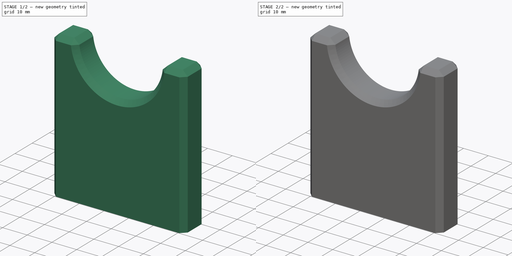
[diagram: build sequence overview — one tinted view per stage of 2, left to right]
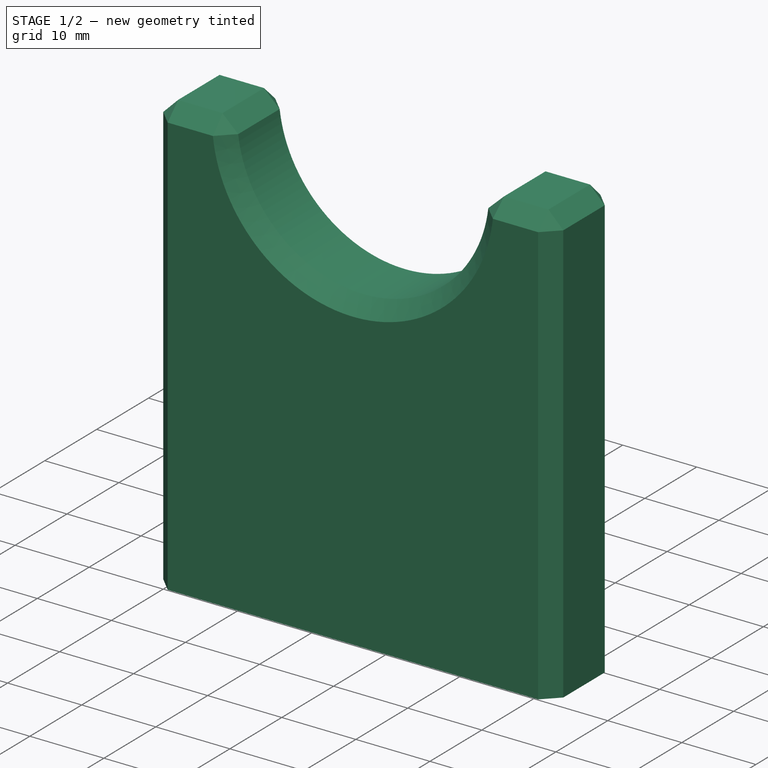
[diagram: stage 1 of 2 — iso view after this stage's code; geometry added in this stage tinted green]
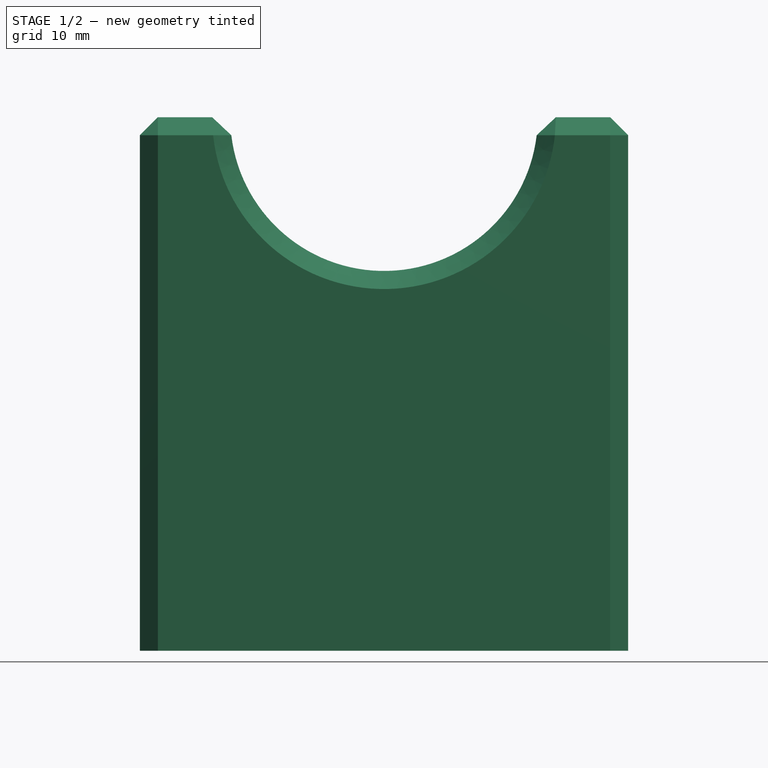
[diagram: stage 1 of 2 — front view after this stage's code; geometry added in this stage tinted green]
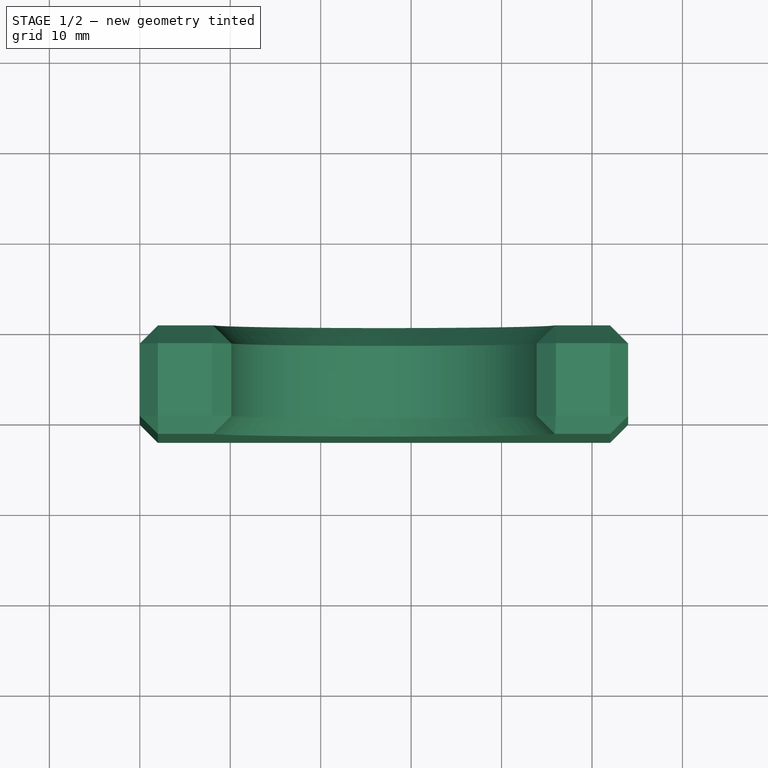
[diagram: stage 1 of 2 — top view after this stage's code; geometry added in this stage tinted green]
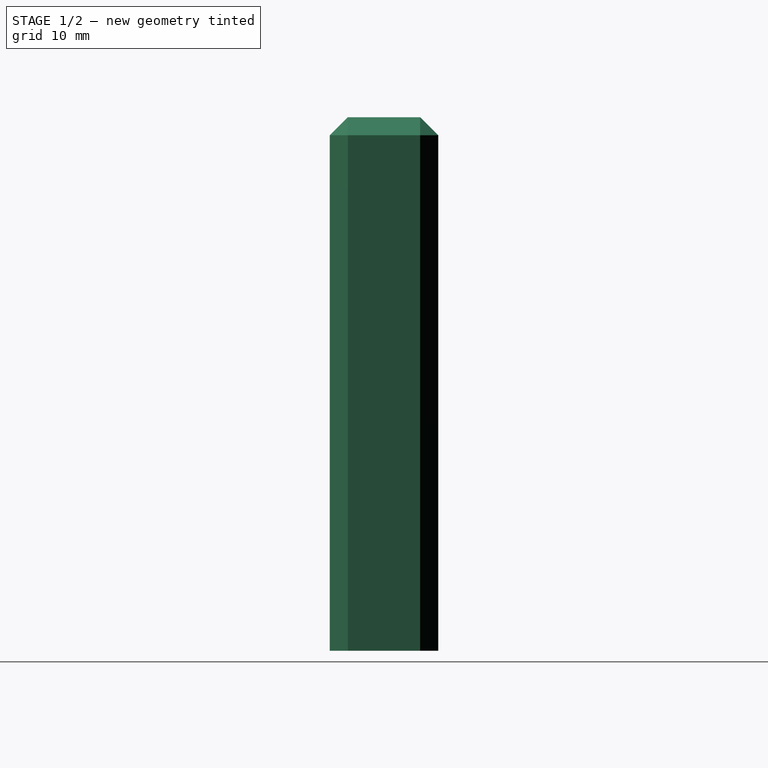
[diagram: stage 1 of 2 — right view after this stage's code; geometry added in this stage tinted green]
FCSTD DOCUMENT  (FreeCAD 1.0R39285 (Git))
Label: DeWalt_DW621_Mount
License: All rights reserved
LicenseURL: https://en.wikipedia.org/wiki/All_rights_reserved
objects: Sketcher::SketchObject×2, PartDesign::Pad×1, PartDesign::Chamfer×1, PartDesign::Hole×1, PartDesign::Body×1
note: 14 computed .brp shape members not serialized (recipe doc carries the construction recipe); baked Part::Feature solids carry a one-line shape summary decoded from their .brp

FEATURE [Sketcher::SketchObject] Sketch
  ArcFitTolerance = 1e-06
  AttachmentSupport = -> [XZ_Plane]
  FullyConstrained = true
  MakeInternals = false
  MapMode = 5
  Placement = pos=(0,0,0) rot=(1,0,0;1.5708rad)
  sketch-geometry (10):
    g0: LineSegment StartX=0 StartY=0 StartZ=0 EndX=54 EndY=0 EndZ=0
    g1: LineSegment StartX=54 StartY=0 StartZ=0 EndX=54 EndY=59 EndZ=0
    g2: LineSegment StartX=0 StartY=59 StartZ=0 EndX=0 EndY=0 EndZ=0
    g3: ArcOfCircle CenterX=27 CenterY=59 CenterZ=0 NormalX=0 NormalY=0 NormalZ=1 AngleXU=0 Radius=17 StartAngle=3.14159 EndAngle=6.28319
    g4: LineSegment StartX=10 StartY=59 StartZ=0 EndX=0 EndY=59 EndZ=0
    g5: LineSegment StartX=54 StartY=59 StartZ=0 EndX=44 EndY=59 EndZ=0
    g6: LineSegment [constr] StartX=44 StartY=59 StartZ=0 EndX=10 EndY=59 EndZ=0
    g7: LineSegment [constr] StartX=27 StartY=0 StartZ=0 EndX=27 EndY=42 EndZ=0
    g8: LineSegment [constr] StartX=0 StartY=29.5 StartZ=0 EndX=27 EndY=29.5 EndZ=0
    g9: LineSegment [constr] StartX=27 StartY=29.5 StartZ=0 EndX=54 EndY=29.5 EndZ=0
  constraints (28):
    c: Coincident(g0,g1)
    c: Coincident(g1,g5)
    c: Coincident(g4,g2)
    c: Coincident(g2,g0)
    c: Horizontal(g0)
    c: Vertical(g1)
    c: Vertical(g2)
    c: Coincident(g0,g-1)
    c: Symmetric(g5,g4,g3)
    c: Coincident(g6,g4)
    c: Horizontal(g4)
    c: Coincident(g5,g6)
    c: Horizontal(g5)
    c: Horizontal(g6)
    c: Coincident(g3,g5)
    c: Coincident(g3,g4)
    c: DistanceX(g5,g5) = 10
    c: Diameter(g3) = 34
    c: PointOnObject(g7,g0)
    c: PointOnObject(g7,g3)
    c: Vertical(g7)
    c: Symmetric(g2,g2,g8)
    c: PointOnObject(g8,g7)
    c: Horizontal(g8)
    c: Coincident(g9,g8)
    c: Symmetric(g1,g1,g9)
    c: Equal(g8,g9)
    c: DistanceY(g7,g7) = 42
FEATURE [PartDesign::Pad] Pad
  Direction = (0,-1,2e-16)
  Length = 12
  Length2 = 10
  Placement = pos=(0,0,0) rot=(1,0,0;1.5708rad)
  Profile = -> Sketch
  ReferenceAxis = -> Sketch [N_Axis]
  Refine = true
  Suppressed = false
  Type = 0
FEATURE [PartDesign::Chamfer] Chamfer
  Angle = 45
  Base = -> Pad [Face1,Face5,Edge7,Edge6,Edge12,Edge13,Edge17,Edge18]
  BaseFeature = -> Pad
  ChamferType = 0
  FlipDirection = false
  Placement = pos=(0,0,0) rot=(1,0,0;1.5708rad)
  Refine = true
  Size = 2
  Size2 = 1
  SupportTransform = false
  Suppressed = false
  UseAllEdges = false
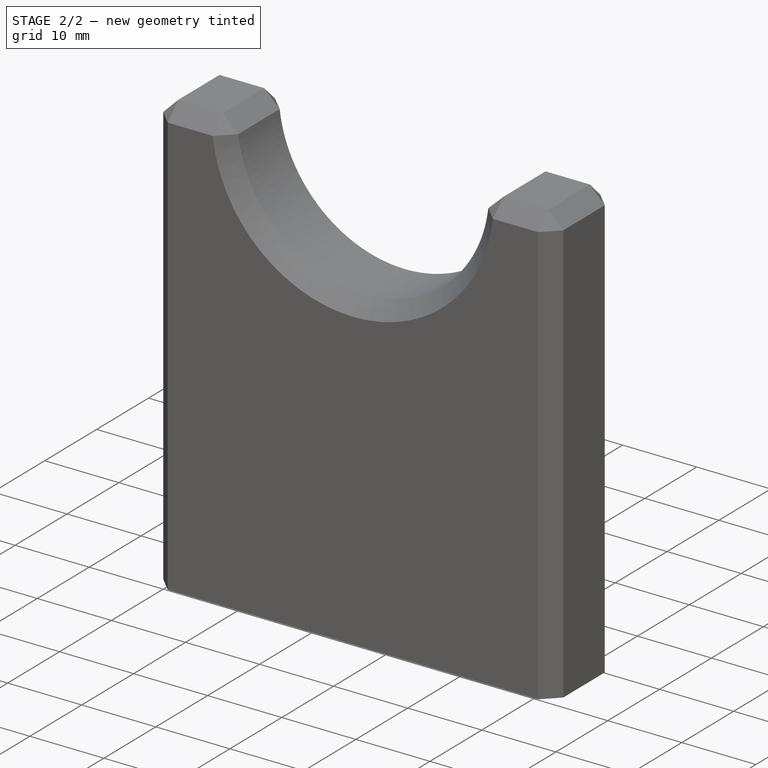
[diagram: stage 2 of 2 — iso view after this stage's code; geometry added in this stage tinted green]
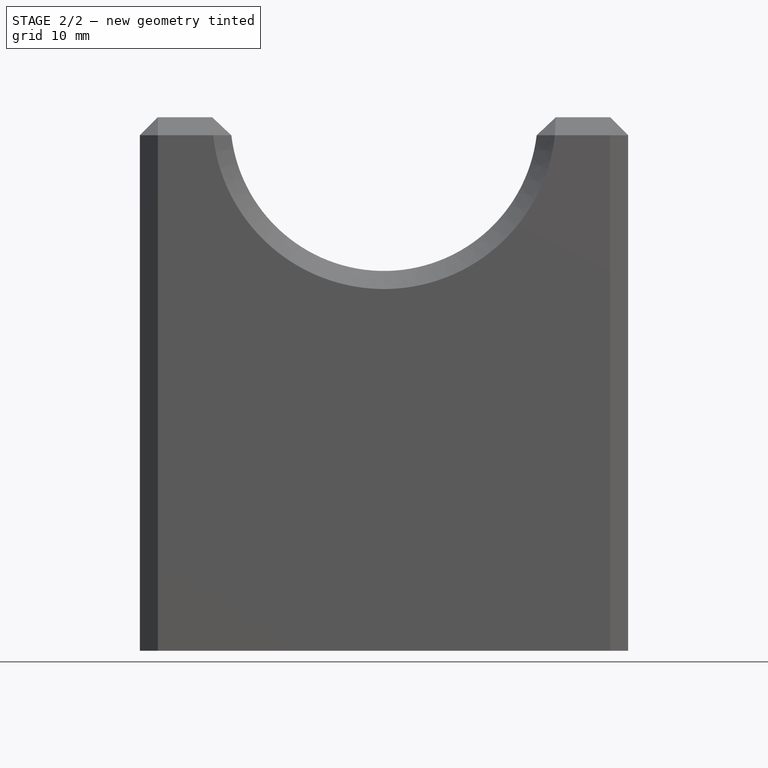
[diagram: stage 2 of 2 — front view after this stage's code; geometry added in this stage tinted green]
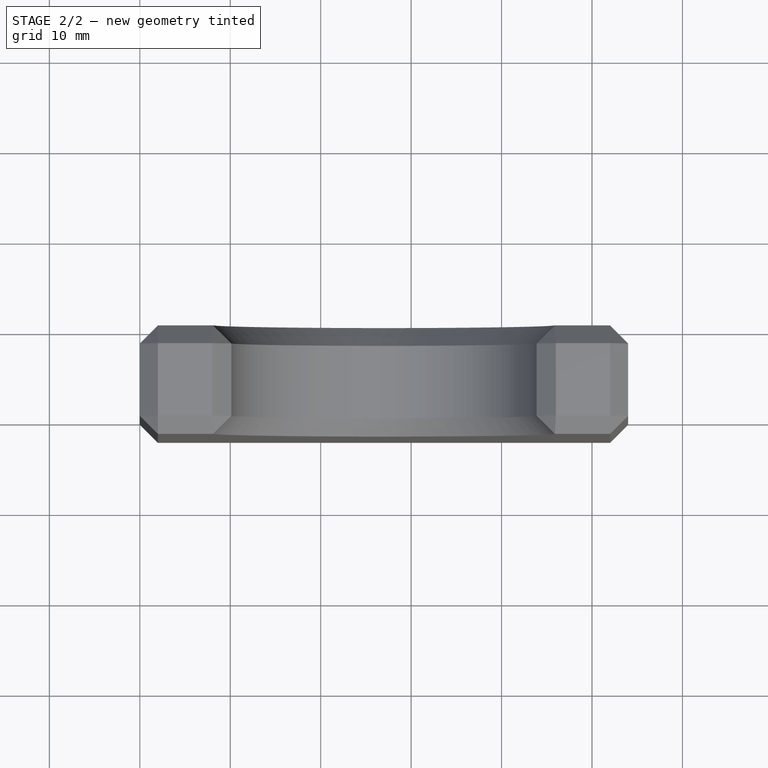
[diagram: stage 2 of 2 — top view after this stage's code; geometry added in this stage tinted green]
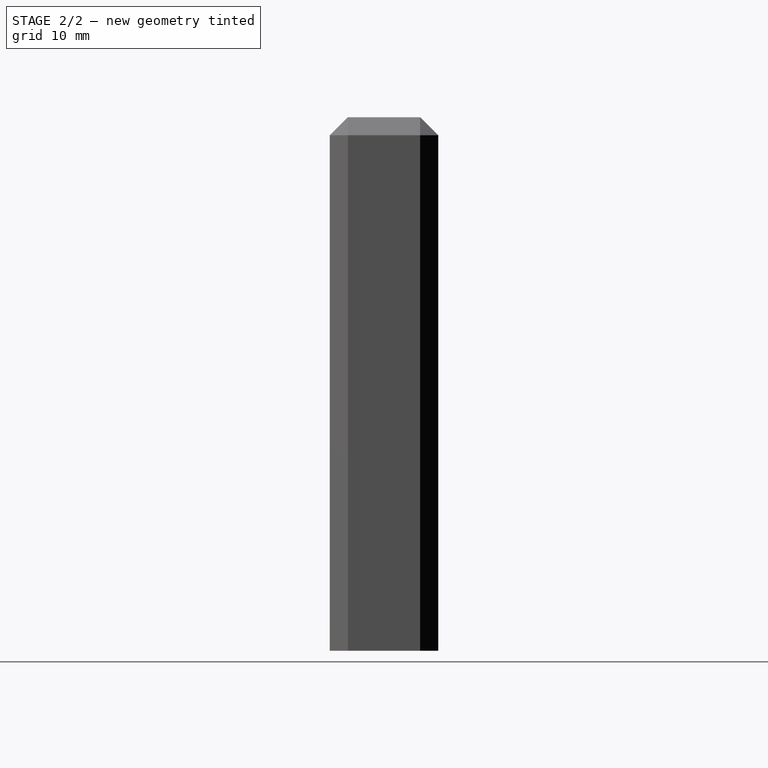
[diagram: stage 2 of 2 — right view after this stage's code; geometry added in this stage tinted green]
FEATURE [Sketcher::SketchObject] Sketch001
  ArcFitTolerance = 1e-06
  AttachmentSupport = -> [XY_Plane]
  ExternalGeometry = -> [Chamfer]
  FullyConstrained = true
  MakeInternals = false
  MapMode = 5
  sketch-geometry (7):
    g0: Circle CenterX=12 CenterY=-6 CenterZ=0 NormalX=0 NormalY=0 NormalZ=1 AngleXU=0 Radius=2
    g1: Circle CenterX=42 CenterY=-6 CenterZ=0 NormalX=0 NormalY=0 NormalZ=1 AngleXU=0 Radius=2
    g2: LineSegment [constr] StartX=12 StartY=-6 StartZ=0 EndX=42 EndY=-6 EndZ=0
    g3: LineSegment [constr] StartX=42 StartY=-6 StartZ=0 EndX=54 EndY=-6 EndZ=0
    g4: LineSegment [constr] StartX=12 StartY=-6 StartZ=0 EndX=0 EndY=-6 EndZ=0
    g5: LineSegment [constr] StartX=12 StartY=0 StartZ=0 EndX=12 EndY=-6 EndZ=0
    g6: LineSegment [constr] StartX=12 StartY=-6 StartZ=0 EndX=12 EndY=-12 EndZ=0
  constraints (20):
    c: Equal(g0,g1)
    c: Diameter(g0) = 4
    c: Coincident(g2,g0)
    c: Coincident(g2,g1)
    c: Horizontal(g2)
    c: Coincident(g3,g1)
    c: PointOnObject(g3,g-4)
    c: Horizontal(g3)
    c: Coincident(g4,g0)
    c: PointOnObject(g4,g-5)
    c: Horizontal(g4)
    c: Equal(g4,g3)
    c: DistanceX(g2,g2) = 30
    c: PointOnObject(g5,g-1)
    c: Coincident(g5,g0)
    c: Vertical(g5)
    c: Coincident(g5,g6)
    c: PointOnObject(g6,g-3)
    c: Vertical(g6)
    c: Equal(g6,g5)
FEATURE [PartDesign::Hole] Hole
  BaseFeature = -> Chamfer
  CustomThreadClearance = 0
  Depth = 35
  DepthType = 0
  Diameter = 3.322
  DrillForDepth = false
  DrillPoint = 1
  DrillPointAngle = 118
  HoleCutCountersinkAngle = 90
  HoleCutCustomValues = false
  HoleCutDepth = 0
  HoleCutDiameter = 6.1
  HoleCutType = 0
  ModelThread = true
  Placement = pos=(0,0,0) rot=(1,0,0;1.5708rad)
  Profile = -> Sketch001
  Refine = true
  Reversed = true
  Suppressed = false
  Tapered = false
  TaperedAngle = 90
  ThreadClass = 0
  ThreadDepth = 35
  ThreadDepthType = 0
  ThreadDirection = 0
  ThreadFit = 0
  ThreadSize = 11
  ThreadType = 1
  Threaded = true
  UseCustomThreadClearance = false
FEATURE [PartDesign::Body] Body  label="SideBody"
  AllowCompound = false
  Group = -> [Sketch,Pad,Chamfer,Sketch001,Hole]
  Origin = -> Origin
  Tip = -> Hole
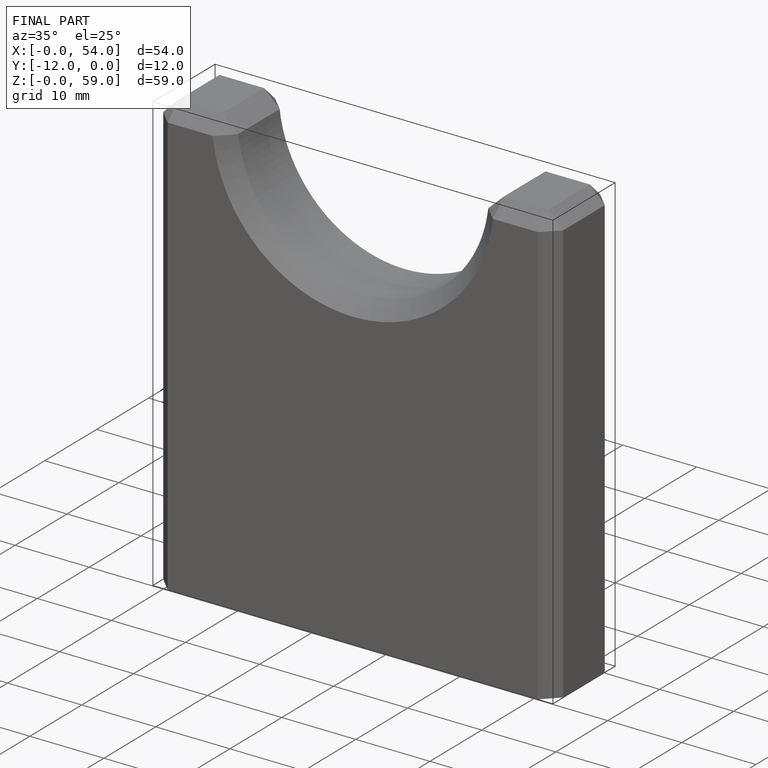
[diagram: finished part — iso view with bounding-box wireframe]
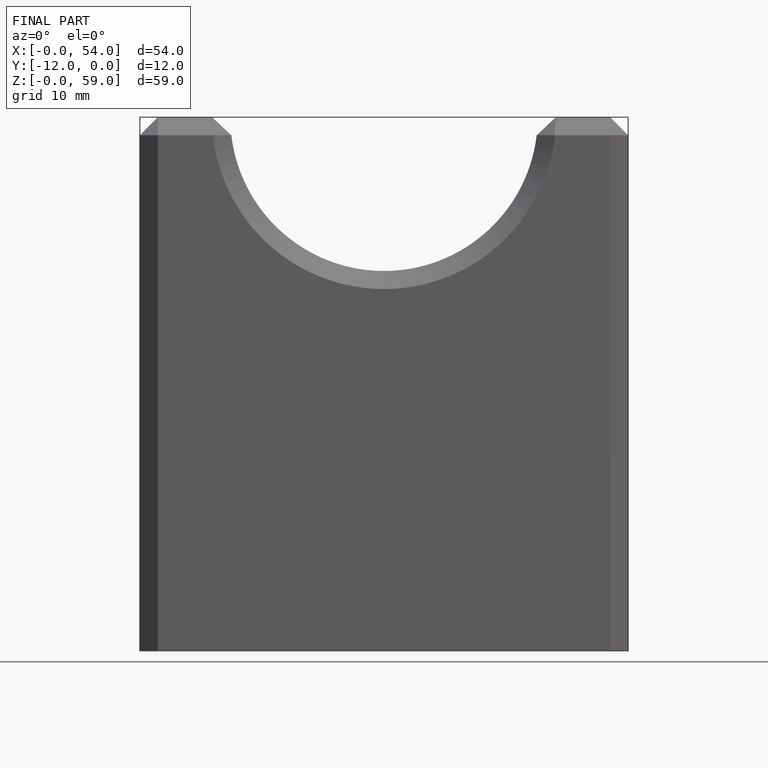
[diagram: finished part — front view with bounding-box wireframe]
